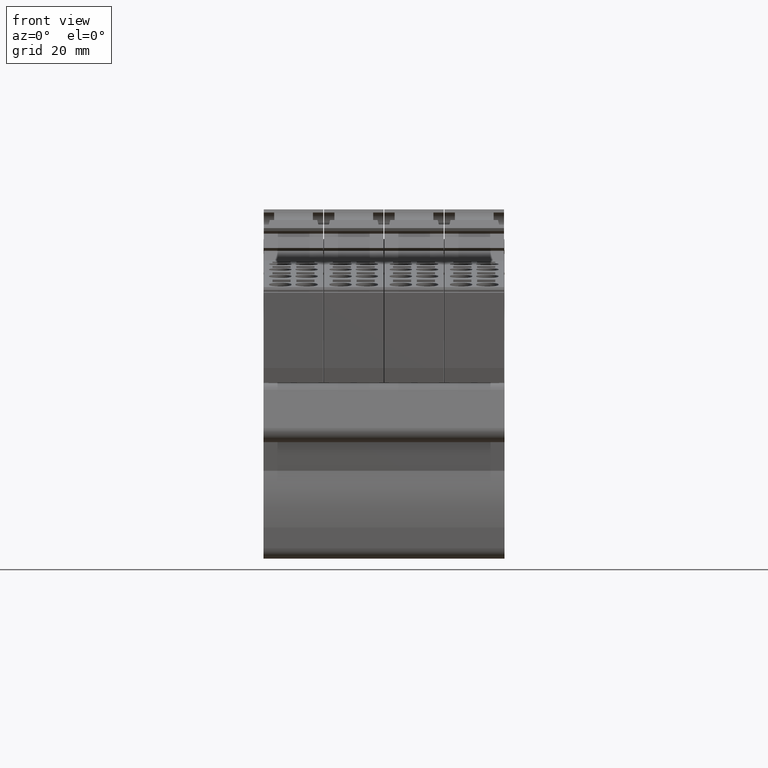
[diagram: clean part render]
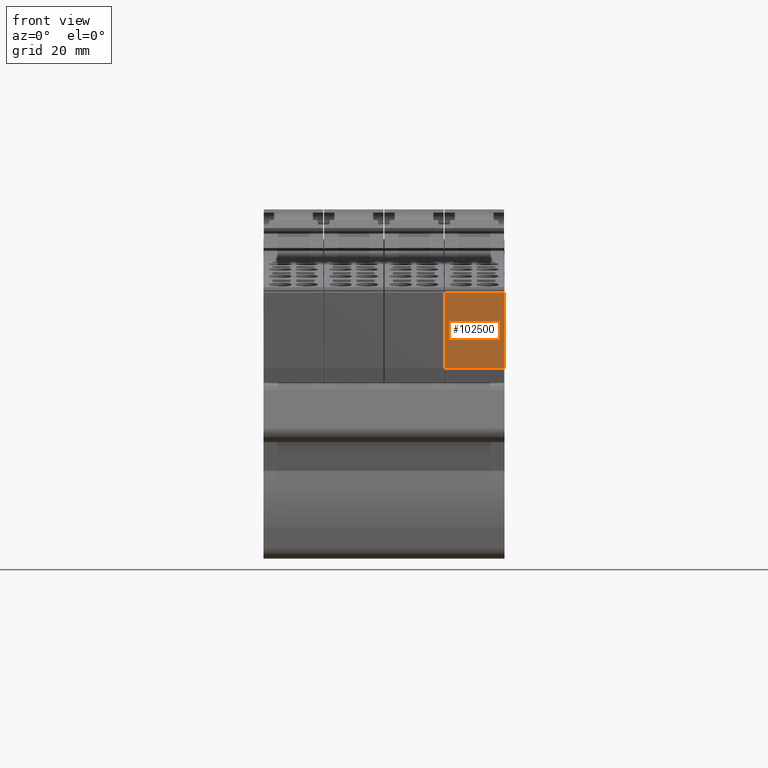
[diagram: same view with one face highlighted and labeled with its STEP entity id]
A machine part, front view. The second image highlights one B-rep face of the part: STEP entity #102500.
In plain terms, the highlighted planar face has unit normal (0, -1, -0).
Its self-contained STEP definition (entity closure, byte-faithful):
#2140=CARTESIAN_POINT('',(13.1829347668366,67.701244428714,-47.425));
#2150=VERTEX_POINT('',#2140);
#2180=CARTESIAN_POINT('',(13.1829347668366,60.0230590239077,-47.425));
#2190=DIRECTION('',(8.32667268468867E-17,-1.,-1.38777878078145E-17));
#2200=VECTOR('',#2190,1.);
#2210=LINE('',#2180,#2200);
#2220=CARTESIAN_POINT('',(13.1829347668366,52.4942181245001,-47.425));
#2230=VERTEX_POINT('',#2220);
#2240=EDGE_CURVE('',#2150,#2230,#2210,.T.);
#7130=CARTESIAN_POINT('',(13.1829347668366,52.4942181245001,-35.425));
#7140=VERTEX_POINT('',#7130);
#7170=CARTESIAN_POINT('',(13.1829347668366,60.0230590239077,-35.425));
#7180=DIRECTION('',(8.32667268468867E-17,-1.,-1.38777878078145E-17));
#7190=VECTOR('',#7180,1.);
#7200=LINE('',#7170,#7190);
#7210=CARTESIAN_POINT('',(13.1829347668366,67.701244428714,-35.425));
#7220=VERTEX_POINT('',#7210);
#7230=EDGE_CURVE('',#7220,#7140,#7200,.T.);
#102180=CARTESIAN_POINT('',(13.1829347668366,67.701244428714,-35.425));
#102190=DIRECTION('',(-8.85927774418128E-33,0.,1.));
#102200=VECTOR('',#102190,1.);
#102210=LINE('',#102180,#102200);
#102220=EDGE_CURVE('',#2150,#7220,#102210,.T.);
#102340=CARTESIAN_POINT('',(13.1829347668366,67.701244428714,-35.425));
#102350=DIRECTION('',(-1.,-1.11022302462516E-16,-8.85927774418128E-33));
#102360=DIRECTION('',(-1.11022302462516E-16,1.,0.));
#102370=AXIS2_PLACEMENT_3D('',#102340,#102350,#102360);
#102380=PLANE('',#102370);
#102390=CARTESIAN_POINT('',(13.1829347668366,52.4942181245003,-35.425));
#102400=DIRECTION('',(8.85927774418128E-33,0.,-1.));
#102410=VECTOR('',#102400,1.);
#102420=LINE('',#102390,#102410);
#102430=EDGE_CURVE('',#7140,#2230,#102420,.T.);
#102440=ORIENTED_EDGE('',*,*,#102430,.F.);
#102450=ORIENTED_EDGE('',*,*,#2240,.T.);
#102460=ORIENTED_EDGE('',*,*,#102220,.F.);
#102470=ORIENTED_EDGE('',*,*,#7230,.F.);
#102480=EDGE_LOOP('',(#102470,#102460,#102450,#102440));
#102490=FACE_OUTER_BOUND('',#102480,.T.);
#102500=ADVANCED_FACE('',(#102490),#102380,.T.);